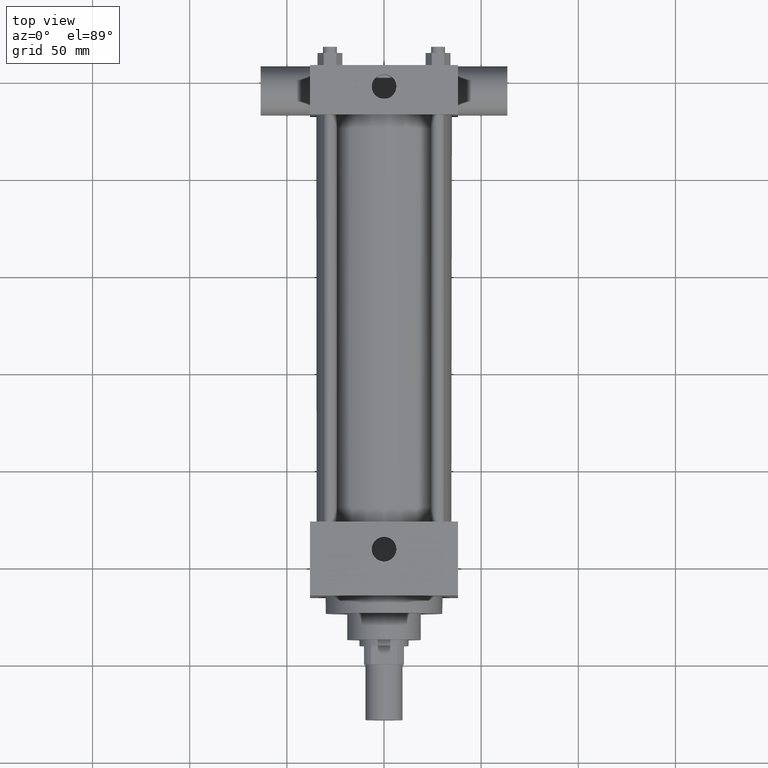
[diagram: clean part render]
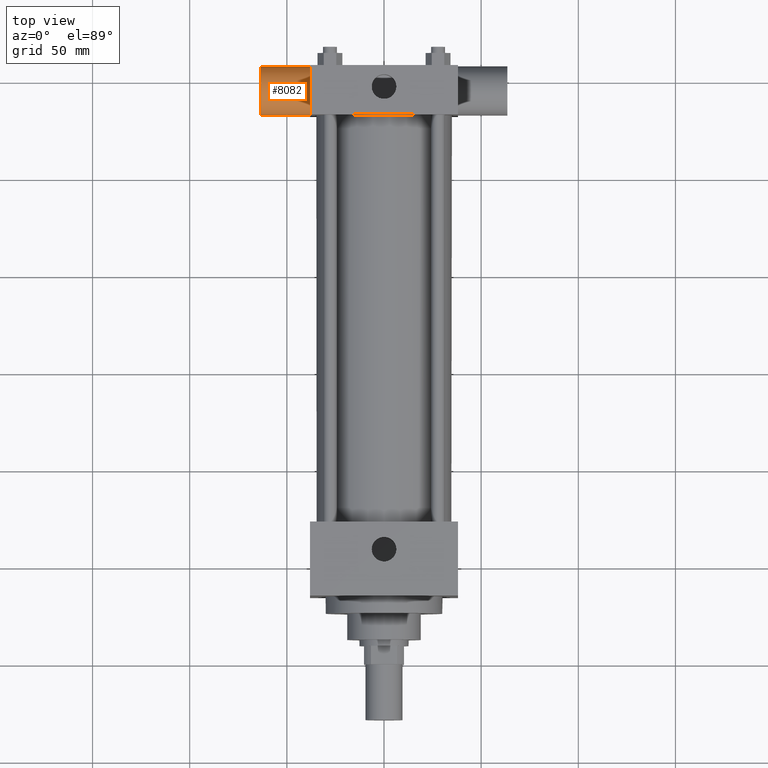
[diagram: same view with one face highlighted and labeled with its STEP entity id]
A machine part, top view. The second image highlights one B-rep face of the part: STEP entity #8082.
In plain terms, the highlighted cylindrical surface (bore or boss wall) has radius 12.6746 mm, axis along (-1, 0, 0).
Its self-contained STEP definition (entity closure, byte-faithful):
#2809=EDGE_CURVE('',#2815,#2815,#2810,.T.);
#2810=CIRCLE('',#2811,1.267460000E+001);
#2811=AXIS2_PLACEMENT_3D('',#2812,#2813,#2814);
#2812=CARTESIAN_POINT('',(-3.810000000E+001,2.952750000E+002,0.000000000E+000));
#2813=DIRECTION('',(1.0E+000,0.0E+000,0.0E+000));
#2814=DIRECTION('',(0.0E+000,-1.0E+000,0.0E+000));
#2815=VERTEX_POINT('',#2816);
#2816=CARTESIAN_POINT('',(-3.810000000E+001,2.826004000E+002,0.000000000E+000));
#2871=FACE_OUTER_BOUND('',#2873,.T.);
#2872=FACE_BOUND('',#2874,.T.);
#2873=EDGE_LOOP('',(#2875));
#2874=EDGE_LOOP('',(#2884));
#2875=ORIENTED_EDGE('',*,*,#2876,.T.);
#2876=EDGE_CURVE('',#2882,#2882,#2877,.T.);
#2877=CIRCLE('',#2878,1.267460000E+001);
#2878=AXIS2_PLACEMENT_3D('',#2879,#2880,#2881);
#2879=CARTESIAN_POINT('',(-6.350000000E+001,2.952750000E+002,0.000000000E+000));
#2880=DIRECTION('',(1.0E+000,0.0E+000,0.0E+000));
#2881=DIRECTION('',(0.0E+000,-1.0E+000,0.0E+000));
#2882=VERTEX_POINT('',#2883);
#2883=CARTESIAN_POINT('',(-6.350000000E+001,2.826004000E+002,0.000000000E+000));
#2884=ORIENTED_EDGE('',*,*,#2809,.F.);
#2885=CYLINDRICAL_SURFACE('',#2886,1.267460000E+001);
#2886=AXIS2_PLACEMENT_3D('',#2887,#2888,#2889);
#2887=CARTESIAN_POINT('',(-6.350000000E+001,2.952750000E+002,0.000000000E+000));
#2888=DIRECTION('',(-1.0E+000,0.0E+000,0.0E+000));
#2889=DIRECTION('',(0.0E+000,0.0E+000,1.0E+000));
#8082=ADVANCED_FACE('',(#2871,#2872),#2885,.F.);